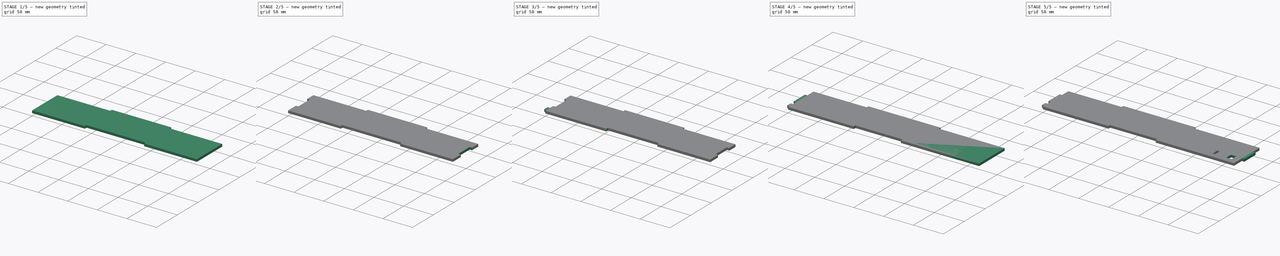
[diagram: build sequence overview — one tinted view per stage of 5, left to right]
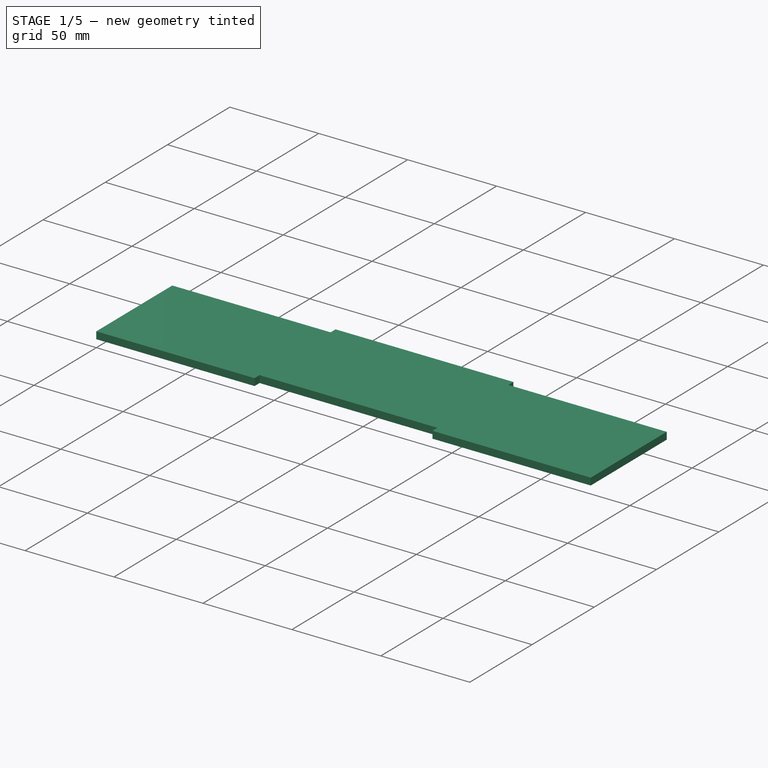
[diagram: stage 1 of 5 — iso view after this stage's code; geometry added in this stage tinted green]
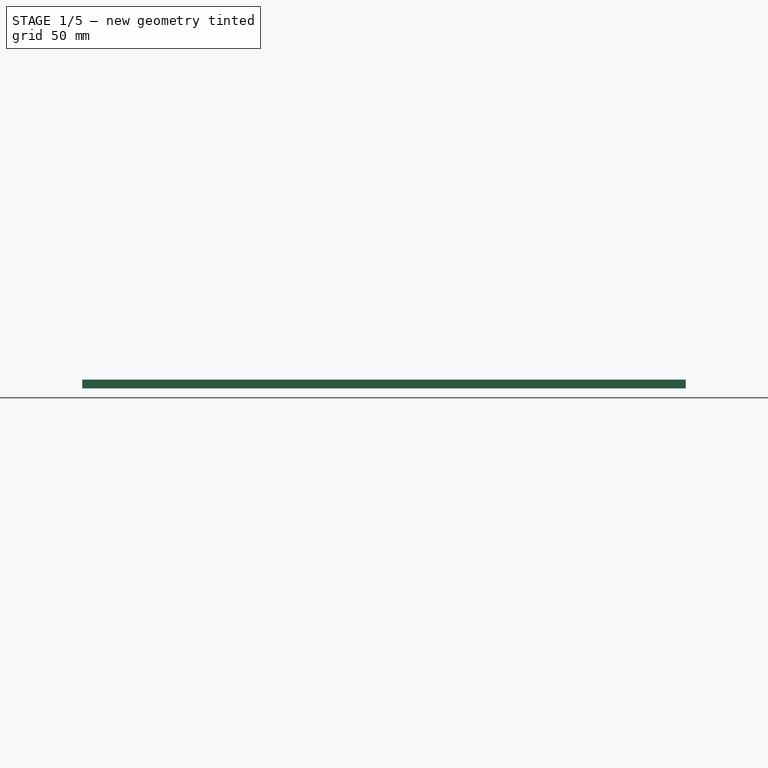
[diagram: stage 1 of 5 — front view after this stage's code; geometry added in this stage tinted green]
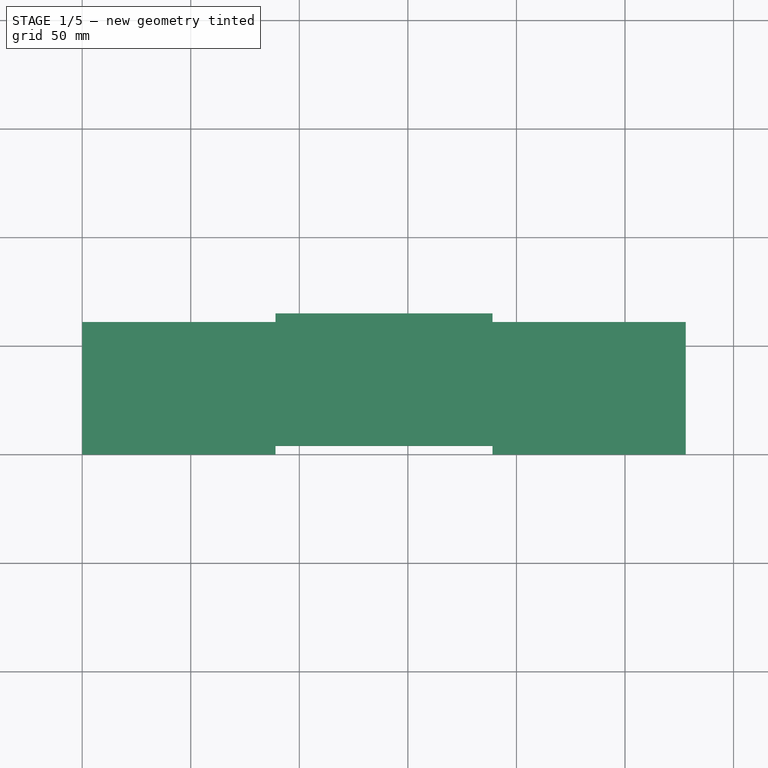
[diagram: stage 1 of 5 — top view after this stage's code; geometry added in this stage tinted green]
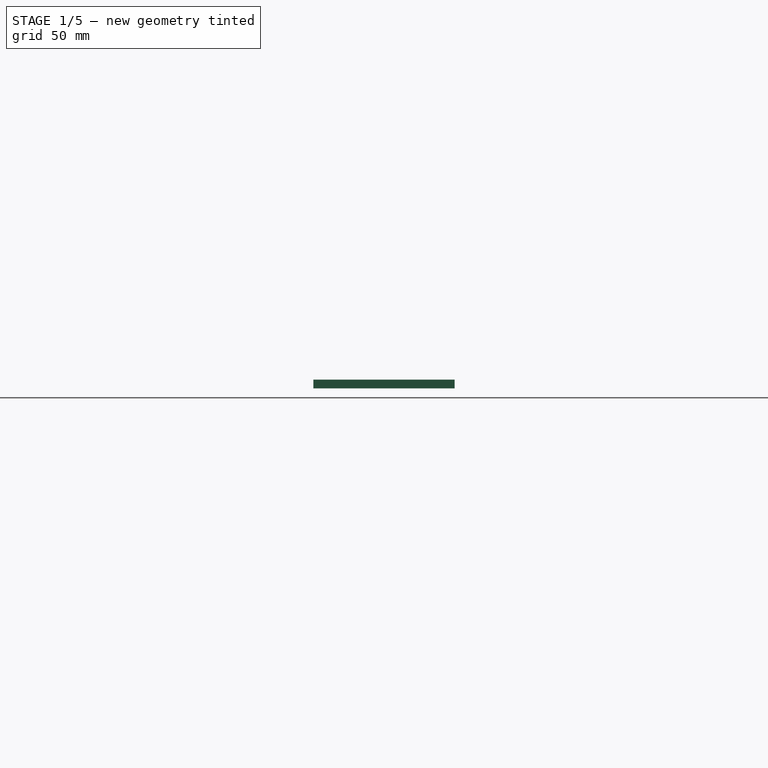
[diagram: stage 1 of 5 — right view after this stage's code; geometry added in this stage tinted green]
FCSTD DOCUMENT  (FreeCAD 0.14R3700 (Git))
Label: interFace-4mm(5&8)
License: CC-BY 3.0
LicenseURL: http://creativecommons.org/licenses/by/3.0/
objects: Sketcher::SketchObject×13, PartDesign::Pocket×8, PartDesign::Pad×5, Part::Box×4
note: 43 computed .brp shape members not serialized (recipe doc carries the construction recipe); baked Part::Feature solids carry a one-line shape summary decoded from their .brp

FEATURE [Part::Box] Box  label="Cubo"
  Height = 4
  Length = 278
  Width = 61
FEATURE [Sketcher::SketchObject] Sketch
  Placement = pos=(0,0,0) rot=(1,0,0;1.5708rad)
  Support = -> Box [Face3]
  sketch-geometry (4):
    g0: LineSegment StartX=89 StartY=4 StartZ=0 EndX=189 EndY=4 EndZ=0
    g1: LineSegment StartX=189 StartY=4 StartZ=0 EndX=189 EndY=0 EndZ=0
    g2: LineSegment StartX=189 StartY=0 StartZ=0 EndX=89 EndY=0 EndZ=0
    g3: LineSegment StartX=89 StartY=0 StartZ=0 EndX=89 EndY=4 EndZ=0
  constraints (12):
    c: Coincident(g0,g1)
    c: Coincident(g1,g2)
    c: Coincident(g2,g3)
    c: Coincident(g3,g0)
    c: Horizontal(g0)
    c: Horizontal(g2)
    c: Vertical(g1)
    c: Vertical(g3)
    c: DistanceX(g0) = 100
    c: DistanceY(g3) = 4
    c: DistanceX(g-1,g2) = 89
    c: DistanceY(g-1,g2) = 0
FEATURE [PartDesign::Pocket] Pocket
  Length = 4
  Sketch = -> Sketch
  Type = 0
FEATURE [Sketcher::SketchObject] Sketch001
  Placement = pos=(0,61,0) rot=(0,0.707107,0.707107;3.14159rad)
  Support = -> Pocket [Face4]
  sketch-geometry (4):
    g0: LineSegment StartX=-189 StartY=4 StartZ=0 EndX=-89 EndY=4 EndZ=0
    g1: LineSegment StartX=-89 StartY=4 StartZ=0 EndX=-89 EndY=0 EndZ=0
    g2: LineSegment StartX=-89 StartY=0 StartZ=0 EndX=-189 EndY=0 EndZ=0
    g3: LineSegment StartX=-189 StartY=0 StartZ=0 EndX=-189 EndY=4 EndZ=0
  constraints (12):
    c: Coincident(g0,g1)
    c: Coincident(g1,g2)
    c: Coincident(g2,g3)
    c: Coincident(g3,g0)
    c: Horizontal(g0)
    c: Horizontal(g2)
    c: Vertical(g1)
    c: Vertical(g3)
    c: DistanceX(g0) = 100
    c: DistanceY(g1) = -4
    c: DistanceX(g-1,g1) = -89
    c: DistanceY(g-1,g1) = 0
FEATURE [PartDesign::Pad] Pad
  Length = 4
  Length2 = 100
  Sketch = -> Sketch001
  Type = 0
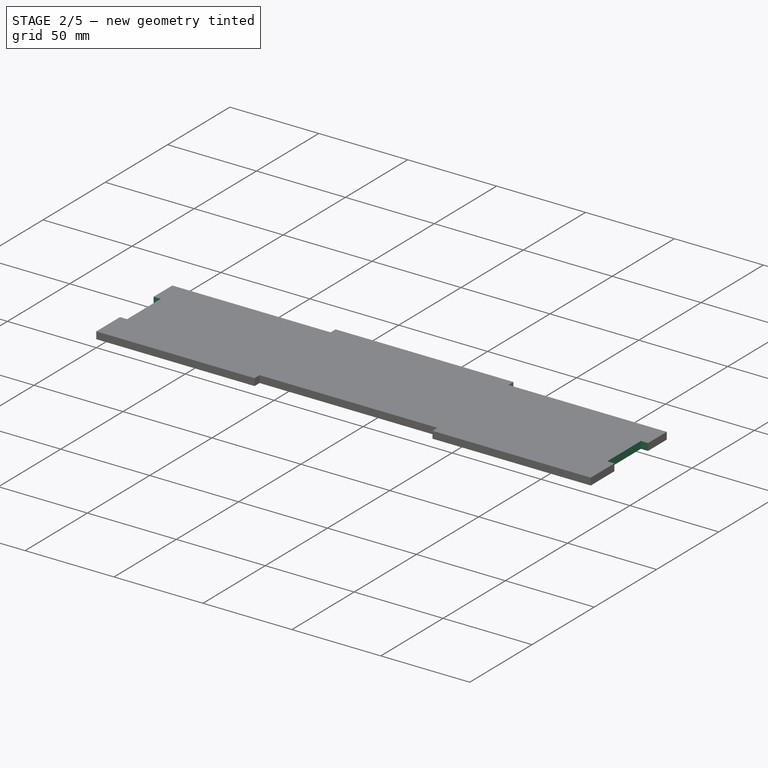
[diagram: stage 2 of 5 — iso view after this stage's code; geometry added in this stage tinted green]
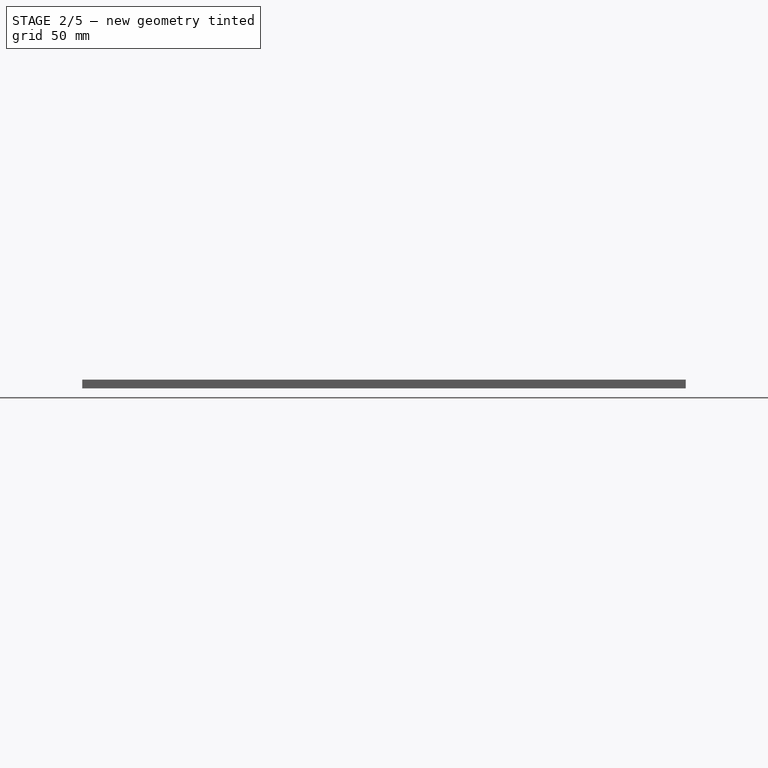
[diagram: stage 2 of 5 — front view after this stage's code; geometry added in this stage tinted green]
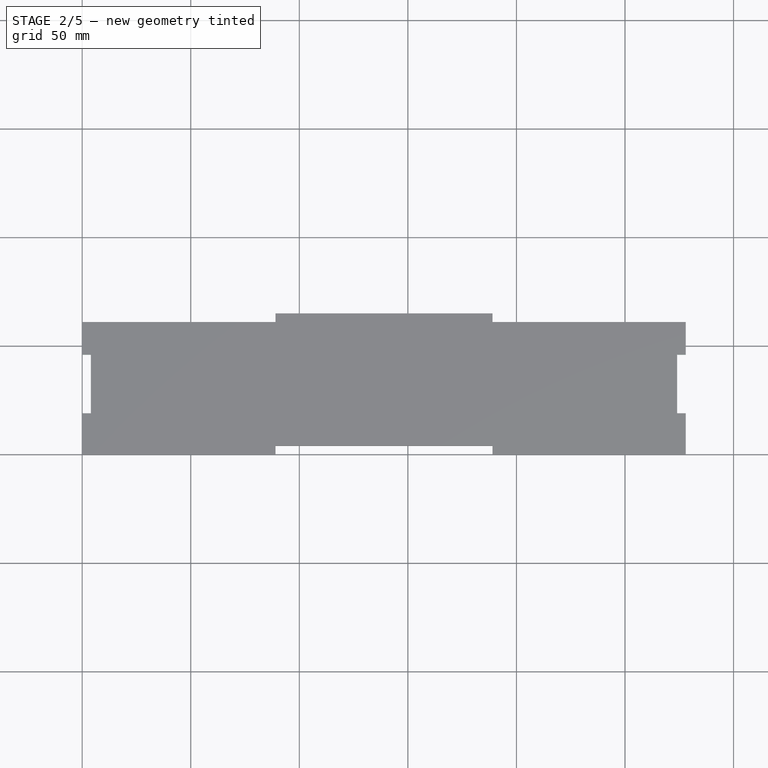
[diagram: stage 2 of 5 — top view after this stage's code; geometry added in this stage tinted green]
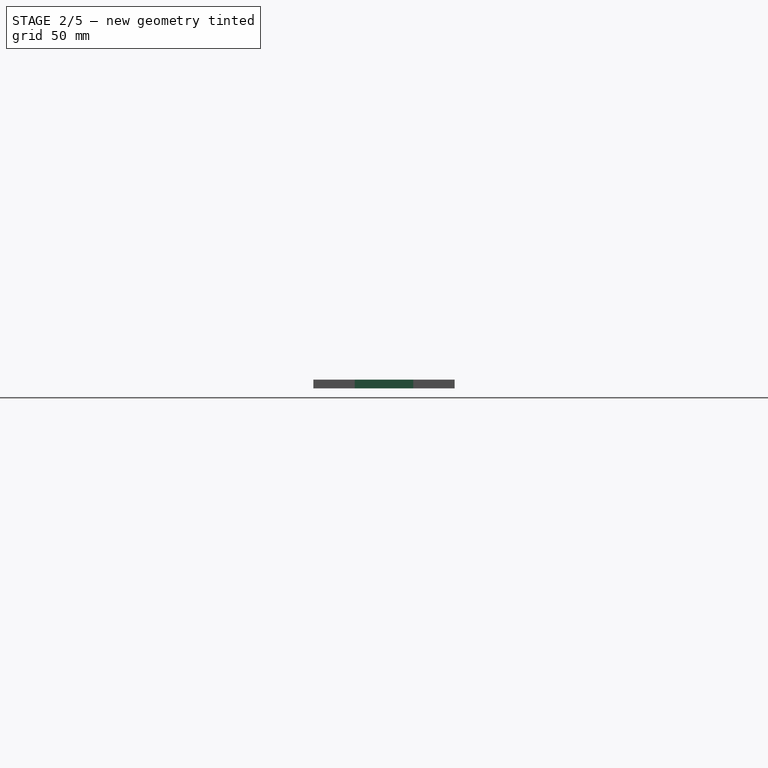
[diagram: stage 2 of 5 — right view after this stage's code; geometry added in this stage tinted green]
FEATURE [Sketcher::SketchObject] Sketch002
  Placement = pos=(278,0,0) rot=(0.57735,0.57735,0.57735;2.0944rad)
  Support = -> Pad [Face2]
  sketch-geometry (4):
    g0: LineSegment StartX=19 StartY=4 StartZ=0 EndX=46 EndY=4 EndZ=0
    g1: LineSegment StartX=46 StartY=4 StartZ=0 EndX=46 EndY=0 EndZ=0
    g2: LineSegment StartX=46 StartY=0 StartZ=0 EndX=19 EndY=0 EndZ=0
    g3: LineSegment StartX=19 StartY=0 StartZ=0 EndX=19 EndY=4 EndZ=0
  constraints (12):
    c: Coincident(g0,g1)
    c: Coincident(g1,g2)
    c: Coincident(g2,g3)
    c: Coincident(g3,g0)
    c: Horizontal(g0)
    c: Horizontal(g2)
    c: Vertical(g1)
    c: Vertical(g3)
    c: DistanceX(g0) = 27
    c: DistanceY(g3) = 4
    c: DistanceX(g-1,g2) = 19
    c: DistanceY(g-1,g2) = 0
FEATURE [PartDesign::Pocket] Pocket001
  Length = 4
  Sketch = -> Sketch002
  Type = 0
FEATURE [Part::Box] Box003  label="Cubo003"
  Height = 4
  Length = 62
  Width = 15
FEATURE [Sketcher::SketchObject] Sketch010
  Placement = pos=(62,0,0) rot=(0.57735,0.57735,0.57735;2.0944rad)
  Support = -> Box003 [Face2]
  sketch-geometry (4):
    g0: LineSegment StartX=3.5 StartY=4 StartZ=0 EndX=11.5 EndY=4 EndZ=0
    g1: LineSegment StartX=11.5 StartY=4 StartZ=0 EndX=11.5 EndY=0 EndZ=0
    g2: LineSegment StartX=11.5 StartY=0 StartZ=0 EndX=3.5 EndY=0 EndZ=0
    g3: LineSegment StartX=3.5 StartY=0 StartZ=0 EndX=3.5 EndY=4 EndZ=0
  constraints (12):
    c: Coincident(g0,g1)
    c: Coincident(g1,g2)
    c: Coincident(g2,g3)
    c: Coincident(g3,g0)
    c: Horizontal(g0)
    c: Horizontal(g2)
    c: Vertical(g1)
    c: Vertical(g3)
    c: DistanceX(g0) = 8
    c: DistanceY(g3) = 4
    c: DistanceX(g-1,g2) = 3.5
    c: DistanceY(g-1,g2) = 0
FEATURE [PartDesign::Pocket] Pocket005
  Length = 4
  Sketch = -> Sketch010
  Type = 0
FEATURE [Sketcher::SketchObject] Sketch012
  Placement = pos=(0,0,0) rot=(0.57735,-0.57735,-0.57735;2.0944rad)
  Support = -> Pocket001 [Face18]
  sketch-geometry (4):
    g0: LineSegment StartX=-46 StartY=4 StartZ=0 EndX=-19 EndY=4 EndZ=0
    g1: LineSegment StartX=-19 StartY=4 StartZ=0 EndX=-19 EndY=0 EndZ=0
    g2: LineSegment StartX=-19 StartY=0 StartZ=0 EndX=-46 EndY=0 EndZ=0
    g3: LineSegment StartX=-46 StartY=0 StartZ=0 EndX=-46 EndY=4 EndZ=0
  constraints (12):
    c: Coincident(g0,g1)
    c: Coincident(g1,g2)
    c: Coincident(g2,g3)
    c: Coincident(g3,g0)
    c: Horizontal(g0)
    c: Horizontal(g2)
    c: Vertical(g1)
    c: Vertical(g3)
    c: DistanceX(g0) = 27
    c: DistanceY(g1) = -4
    c: DistanceX(g-1,g1) = -19
    c: DistanceY(g-1,g1) = 0
FEATURE [PartDesign::Pocket] Pocket007  label="interFace-4mm(8-rojo)"
  Length = 4
  Sketch = -> Sketch012
  Type = 0
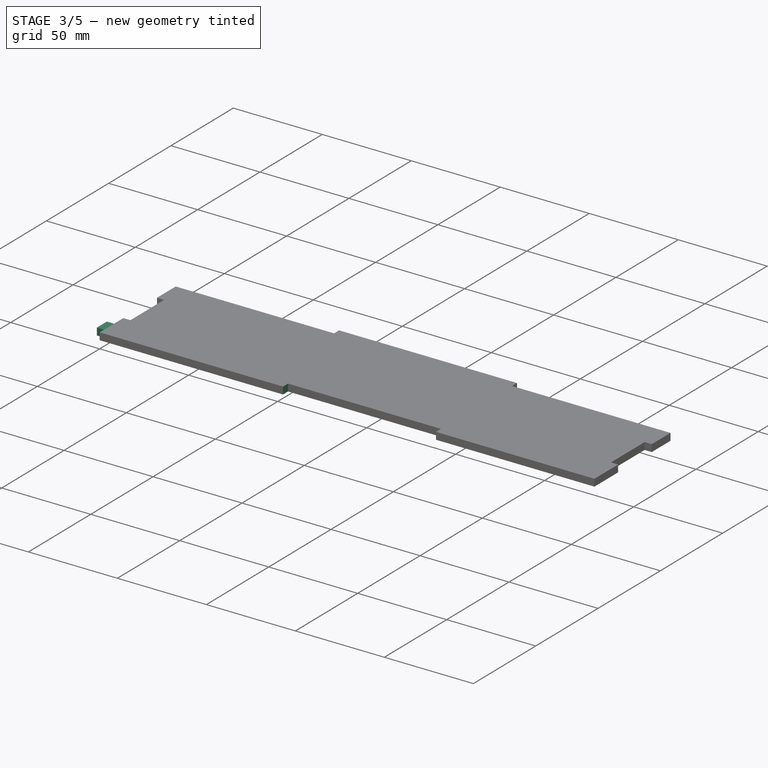
[diagram: stage 3 of 5 — iso view after this stage's code; geometry added in this stage tinted green]
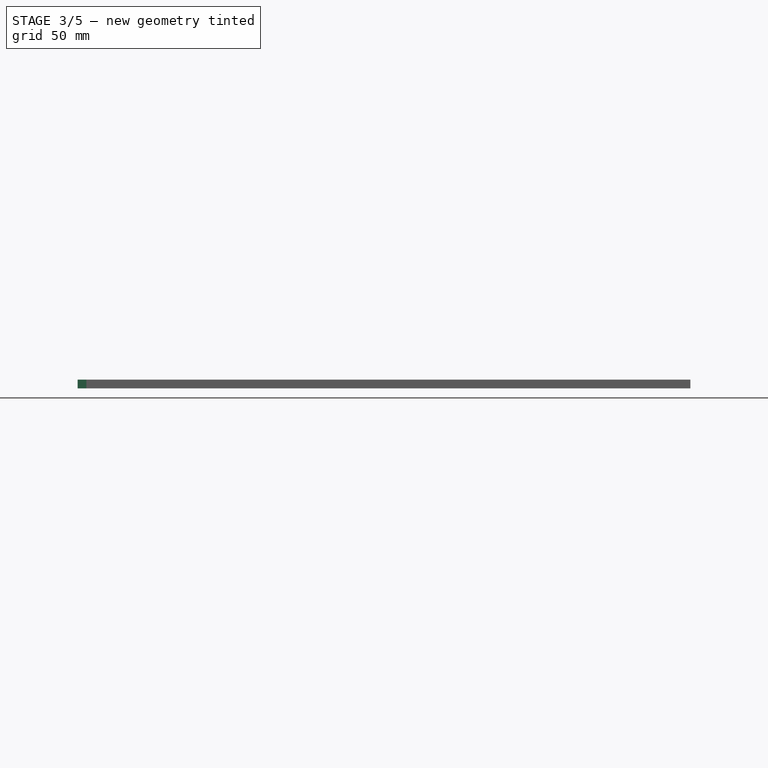
[diagram: stage 3 of 5 — front view after this stage's code; geometry added in this stage tinted green]
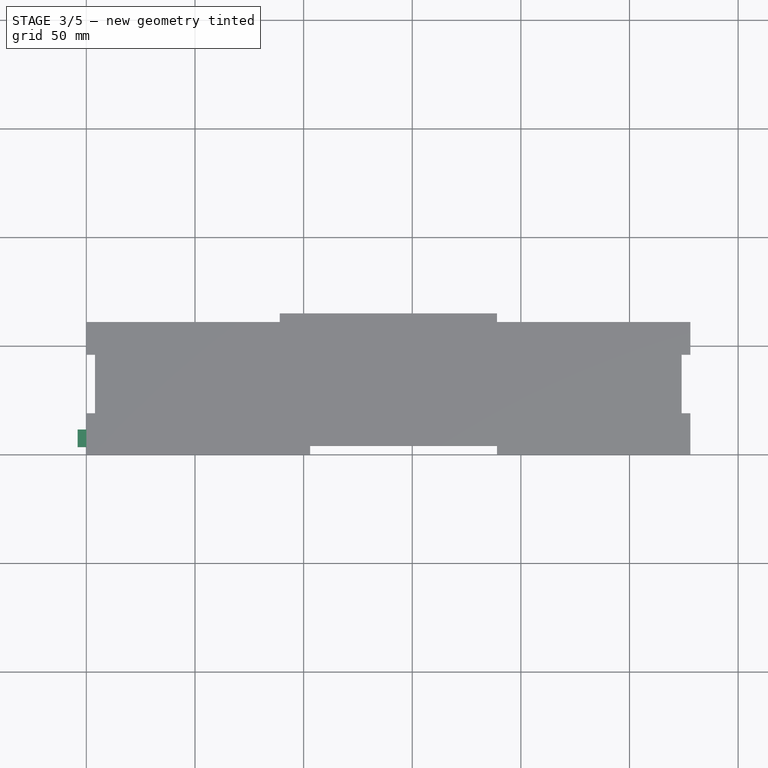
[diagram: stage 3 of 5 — top view after this stage's code; geometry added in this stage tinted green]
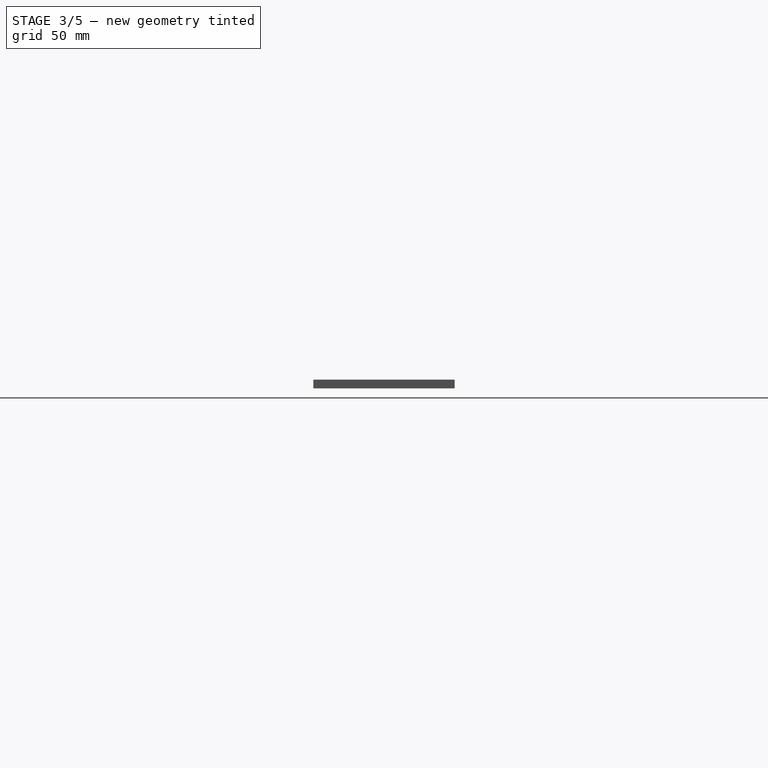
[diagram: stage 3 of 5 — right view after this stage's code; geometry added in this stage tinted green]
FEATURE [Part::Box] Box002  label="Cubo002"
  Height = 4
  Length = 103
  Width = 15
FEATURE [Sketcher::SketchObject] Sketch009
  Placement = pos=(0,0,0) rot=(0.57735,-0.57735,-0.57735;2.0944rad)
  Support = -> Box002 [Face1]
  sketch-geometry (4):
    g0: LineSegment StartX=-3.5 StartY=4 StartZ=0 EndX=-11.5 EndY=4 EndZ=0
    g1: LineSegment StartX=-11.5 StartY=4 StartZ=0 EndX=-11.5 EndY=0 EndZ=0
    g2: LineSegment StartX=-11.5 StartY=0 StartZ=0 EndX=-3.5 EndY=0 EndZ=0
    g3: LineSegment StartX=-3.5 StartY=0 StartZ=0 EndX=-3.5 EndY=4 EndZ=0
  constraints (12):
    c: Coincident(g0,g1)
    c: Coincident(g1,g2)
    c: Coincident(g2,g3)
    c: Coincident(g3,g0)
    c: Horizontal(g0)
    c: Horizontal(g2)
    c: Vertical(g1)
    c: Vertical(g3)
    c: DistanceX(g0) = -8
    c: DistanceX(g-1,g2) = -3.5
    c: DistanceY(g3) = 4
    c: DistanceY(g-1,g2) = 0
FEATURE [PartDesign::Pad] Pad004  label="interFace-4mm(9&11)"
  Length = 4
  Length2 = 100
  Sketch = -> Sketch009
  Type = 0
FEATURE [Sketcher::SketchObject] Sketch011
  Placement = pos=(0,0,0) rot=(0.57735,-0.57735,-0.57735;2.0944rad)
  Support = -> Pocket005 [Face1]
  sketch-geometry (4):
    g0: LineSegment StartX=-3.5 StartY=4 StartZ=0 EndX=-11.5 EndY=4 EndZ=0
    g1: LineSegment StartX=-11.5 StartY=4 StartZ=0 EndX=-11.5 EndY=0 EndZ=0
    g2: LineSegment StartX=-11.5 StartY=0 StartZ=0 EndX=-3.5 EndY=0 EndZ=0
    g3: LineSegment StartX=-3.5 StartY=0 StartZ=0 EndX=-3.5 EndY=4 EndZ=0
  constraints (12):
    c: Coincident(g0,g1)
    c: Coincident(g1,g2)
    c: Coincident(g2,g3)
    c: Coincident(g3,g0)
    c: Horizontal(g0)
    c: Horizontal(g2)
    c: Vertical(g1)
    c: Vertical(g3)
    c: DistanceX(g0) = -8
    c: DistanceY(g1) = -4
    c: DistanceX(g-1,g2) = -3.5
    c: DistanceY(g-1,g2) = 0
FEATURE [PartDesign::Pocket] Pocket006  label="interFace-4mm(10)"
  Length = 4
  Sketch = -> Sketch011
  Type = 0
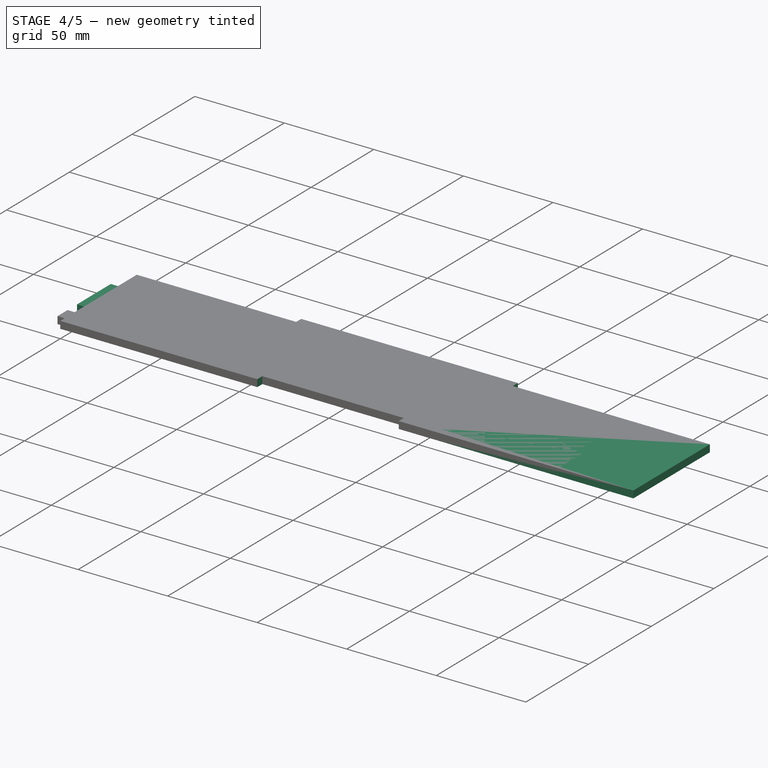
[diagram: stage 4 of 5 — iso view after this stage's code; geometry added in this stage tinted green]
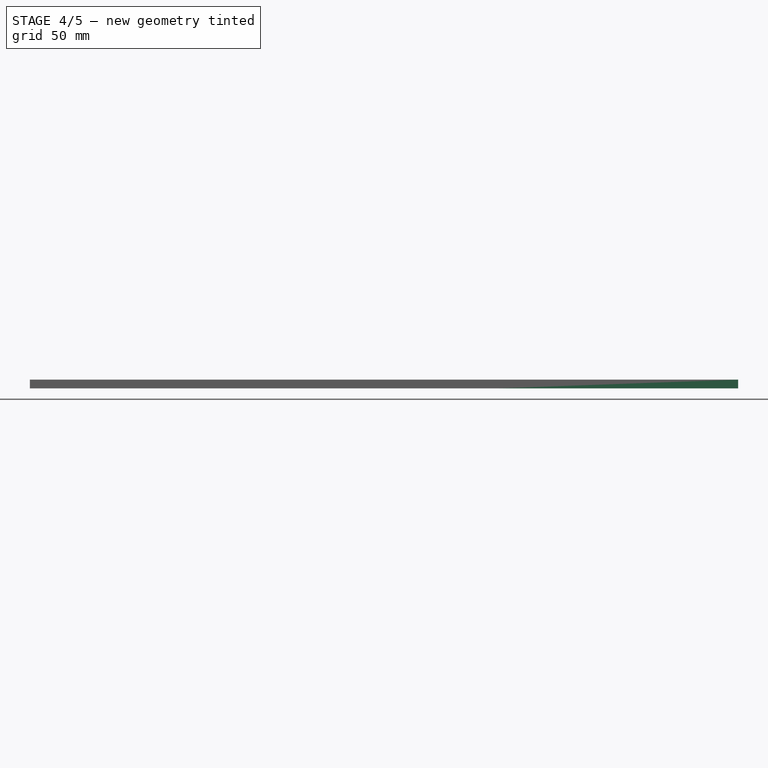
[diagram: stage 4 of 5 — front view after this stage's code; geometry added in this stage tinted green]
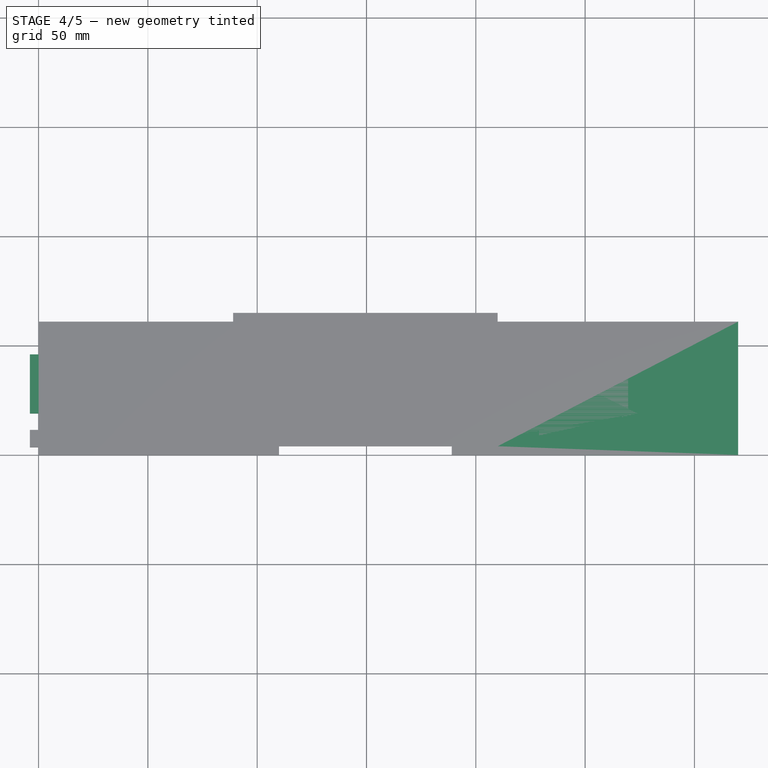
[diagram: stage 4 of 5 — top view after this stage's code; geometry added in this stage tinted green]
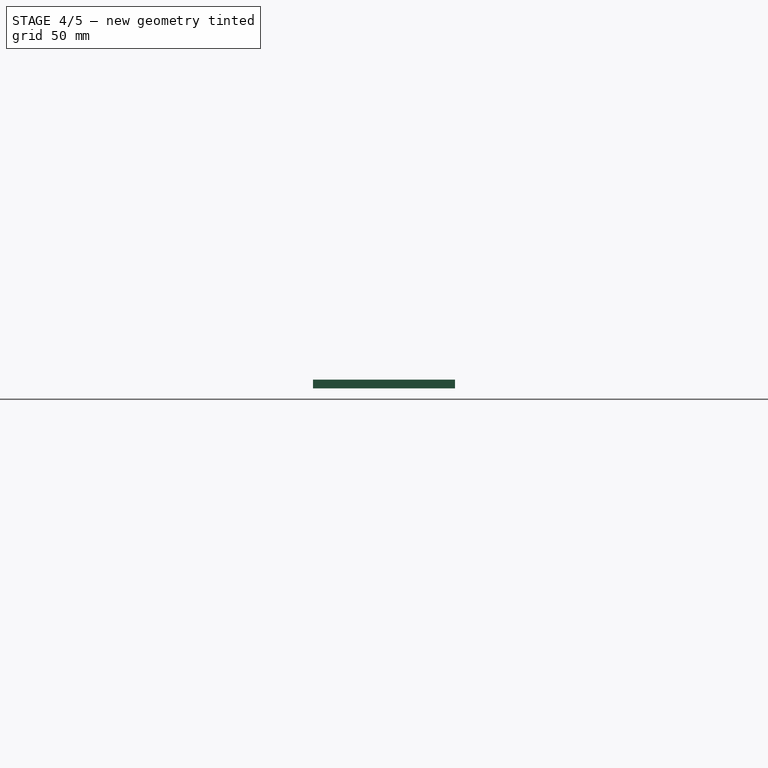
[diagram: stage 4 of 5 — right view after this stage's code; geometry added in this stage tinted green]
FEATURE [Part::Box] Box001  label="Cubo001"
  Height = 4
  Length = 320
  Width = 61
FEATURE [Sketcher::SketchObject] Sketch004
  Placement = pos=(0,0,0) rot=(1,0,0;1.5708rad)
  Support = -> Box001 [Face3]
  sketch-geometry (4):
    g0: LineSegment StartX=110 StartY=4 StartZ=0 EndX=210 EndY=4 EndZ=0
    g1: LineSegment StartX=210 StartY=4 StartZ=0 EndX=210 EndY=0 EndZ=0
    g2: LineSegment StartX=210 StartY=0 StartZ=0 EndX=110 EndY=0 EndZ=0
    g3: LineSegment StartX=110 StartY=0 StartZ=0 EndX=110 EndY=4 EndZ=0
  constraints (12):
    c: Coincident(g0,g1)
    c: Coincident(g1,g2)
    c: Coincident(g2,g3)
    c: Coincident(g3,g0)
    c: Horizontal(g0)
    c: Horizontal(g2)
    c: Vertical(g1)
    c: Vertical(g3)
    c: DistanceX(g0) = 100
    c: DistanceY(g3) = 4
    c: DistanceX(g-1,g2) = 110
    c: DistanceY(g-1,g2) = 0
FEATURE [PartDesign::Pocket] Pocket003
  Length = 4
  Sketch = -> Sketch004
  Type = 0
FEATURE [Sketcher::SketchObject] Sketch005
  Placement = pos=(0,61,0) rot=(0,0.707107,0.707107;3.14159rad)
  Support = -> Pocket003 [Face4]
  sketch-geometry (4):
    g0: LineSegment StartX=-210 StartY=4 StartZ=0 EndX=-110 EndY=4 EndZ=0
    g1: LineSegment StartX=-110 StartY=4 StartZ=0 EndX=-110 EndY=0 EndZ=0
    g2: LineSegment StartX=-110 StartY=0 StartZ=0 EndX=-210 EndY=0 EndZ=0
    g3: LineSegment StartX=-210 StartY=0 StartZ=0 EndX=-210 EndY=4 EndZ=0
  constraints (12):
    c: Coincident(g0,g1)
    c: Coincident(g1,g2)
    c: Coincident(g2,g3)
    c: Coincident(g3,g0)
    c: Horizontal(g0)
    c: Horizontal(g2)
    c: Vertical(g1)
    c: Vertical(g3)
    c: DistanceX(g0) = 100
    c: DistanceX(g-1,g1) = -110
    c: DistanceY(g1) = -4
    c: DistanceY(g-1,g1) = 0
FEATURE [PartDesign::Pad] Pad001
  Length = 4
  Length2 = 100
  Sketch = -> Sketch005
  Type = 0
FEATURE [Sketcher::SketchObject] Sketch006
  Placement = pos=(0,0,0) rot=(0.57735,-0.57735,-0.57735;2.0944rad)
  Support = -> Pad001 [Face5]
  sketch-geometry (4):
    g0: LineSegment StartX=-19 StartY=4 StartZ=0 EndX=-46 EndY=4 EndZ=0
    g1: LineSegment StartX=-46 StartY=4 StartZ=0 EndX=-46 EndY=0 EndZ=0
    g2: LineSegment StartX=-46 StartY=0 StartZ=0 EndX=-19 EndY=0 EndZ=0
    g3: LineSegment StartX=-19 StartY=0 StartZ=0 EndX=-19 EndY=4 EndZ=0
  constraints (12):
    c: Coincident(g0,g1)
    c: Coincident(g1,g2)
    c: Coincident(g2,g3)
    c: Coincident(g3,g0)
    c: Horizontal(g0)
    c: Horizontal(g2)
    c: Vertical(g1)
    c: Vertical(g3)
    c: DistanceX(g0) = -27
    c: DistanceX(g-1,g2) = -19
    c: DistanceY(g3) = 4
    c: DistanceY(g-1,g2) = 0
FEATURE [PartDesign::Pad] Pad002
  Length = 4
  Length2 = 100
  Sketch = -> Sketch006
  Type = 0
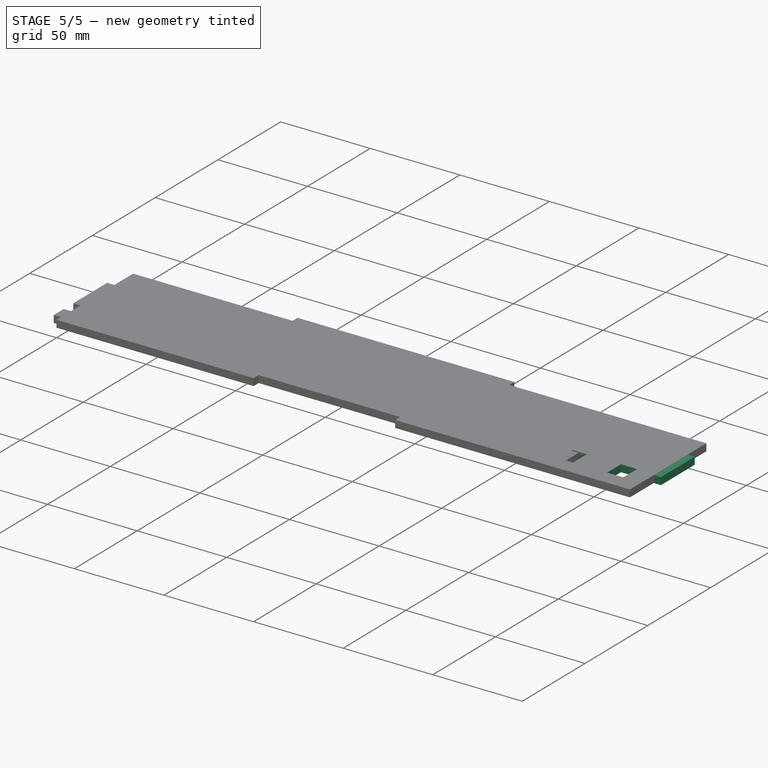
[diagram: stage 5 of 5 — iso view after this stage's code; geometry added in this stage tinted green]
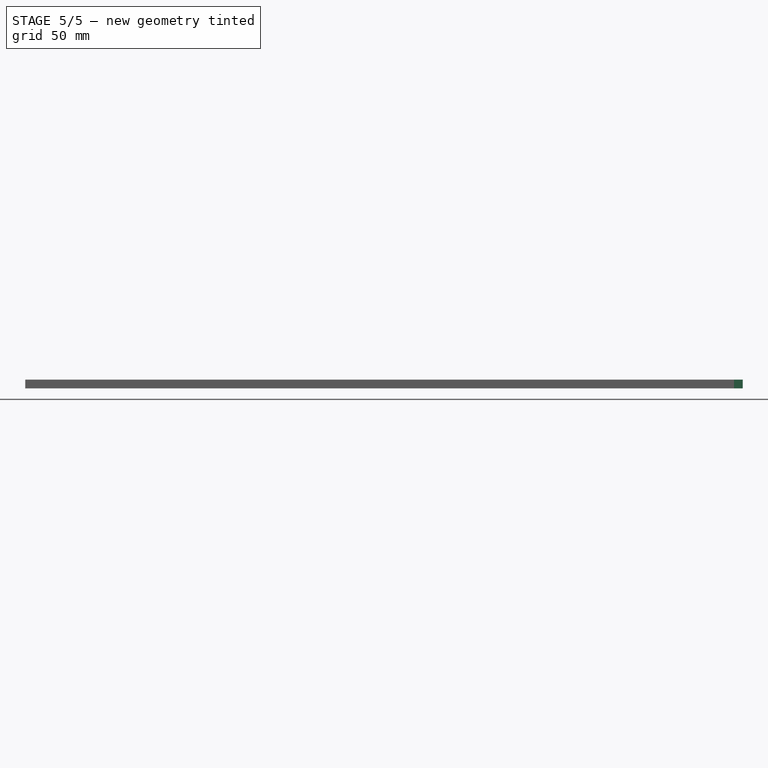
[diagram: stage 5 of 5 — front view after this stage's code; geometry added in this stage tinted green]
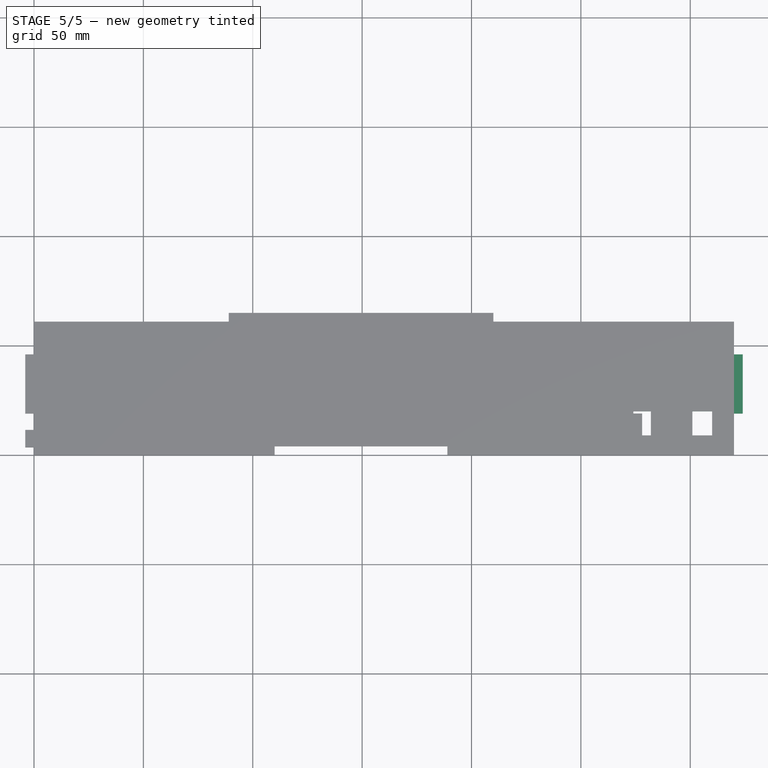
[diagram: stage 5 of 5 — top view after this stage's code; geometry added in this stage tinted green]
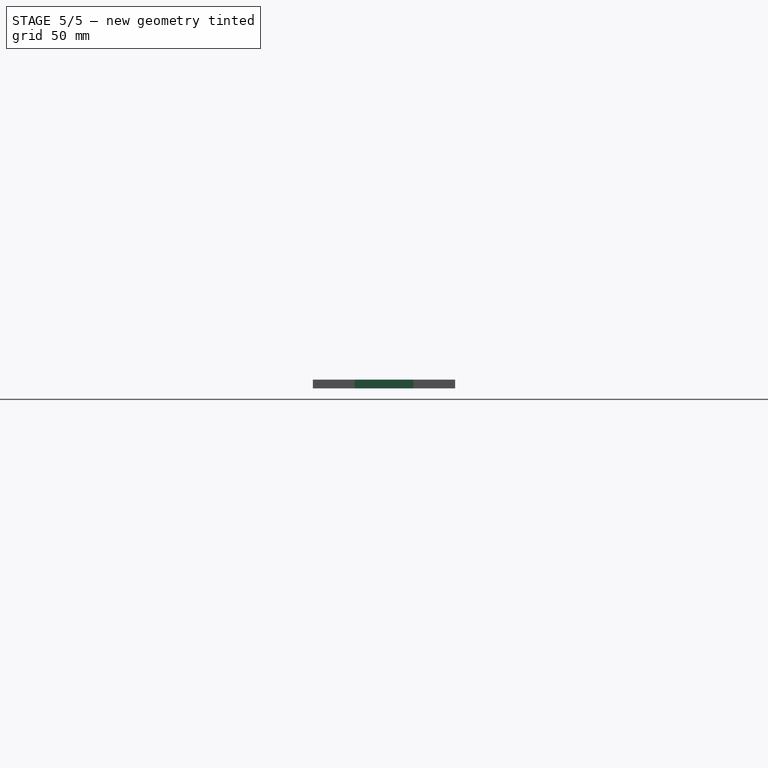
[diagram: stage 5 of 5 — right view after this stage's code; geometry added in this stage tinted green]
FEATURE [Sketcher::SketchObject] Sketch003
  Placement = pos=(0,0,0) rot=(0.57735,-0.57735,-0.57735;2.0944rad)
  Support = -> Pocket001 [Face18]
  sketch-geometry (4):
    g0: LineSegment StartX=-46 StartY=4 StartZ=0 EndX=-19 EndY=4 EndZ=0
    g1: LineSegment StartX=-19 StartY=4 StartZ=0 EndX=-19 EndY=0 EndZ=0
    g2: LineSegment StartX=-19 StartY=0 StartZ=0 EndX=-46 EndY=0 EndZ=0
    g3: LineSegment StartX=-46 StartY=0 StartZ=0 EndX=-46 EndY=4 EndZ=0
  constraints (12):
    c: Coincident(g0,g1)
    c: Coincident(g1,g2)
    c: Coincident(g2,g3)
    c: Coincident(g3,g0)
    c: Horizontal(g0)
    c: Horizontal(g2)
    c: Vertical(g1)
    c: Vertical(g3)
    c: DistanceX(g0) = 27
    c: DistanceY(g1) = -4
    c: DistanceX(g-1,g1) = -19
    c: DistanceY(g-1,g1) = 0
FEATURE [PartDesign::Pocket] Pocket002  label="interFace-4mm(5-amarillo)"
  Length = 4
  Sketch = -> Sketch003
  Type = 0
FEATURE [Sketcher::SketchObject] Sketch007
  Placement = pos=(320,0,0) rot=(0.57735,0.57735,0.57735;2.0944rad)
  Support = -> Pad002 [Face6]
  sketch-geometry (4):
    g0: LineSegment StartX=19 StartY=4 StartZ=0 EndX=46 EndY=4 EndZ=0
    g1: LineSegment StartX=46 StartY=4 StartZ=0 EndX=46 EndY=0 EndZ=0
    g2: LineSegment StartX=46 StartY=0 StartZ=0 EndX=19 EndY=0 EndZ=0
    g3: LineSegment StartX=19 StartY=0 StartZ=0 EndX=19 EndY=4 EndZ=0
  constraints (12):
    c: Coincident(g0,g1)
    c: Coincident(g1,g2)
    c: Coincident(g2,g3)
    c: Coincident(g3,g0)
    c: Horizontal(g0)
    c: Horizontal(g2)
    c: Vertical(g1)
    c: Vertical(g3)
    c: DistanceX(g0) = 27
    c: DistanceY(g3) = 4
    c: DistanceX(g-1,g2) = 19
    c: DistanceY(g-1,g2) = 0
FEATURE [PartDesign::Pad] Pad003  label="interFace-4mm(6)"
  Length = 4
  Length2 = 100
  Sketch = -> Sketch007
  Type = 0
FEATURE [Sketcher::SketchObject] Sketch008
  ExternalGeometry = -> [Pad003]
  Placement = pos=(0,0,4) rot=(0,0,1;0rad)
  Support = -> Pad003 [Face22]
  sketch-geometry (12):
    g0: LineSegment StartX=13 StartY=22 StartZ=0 EndX=34 EndY=22 EndZ=0
    g1: LineSegment StartX=34 StartY=22 StartZ=0 EndX=34 EndY=9 EndZ=0
    g2: LineSegment StartX=34 StartY=9 StartZ=0 EndX=13 EndY=9 EndZ=0
    g3: LineSegment StartX=13 StartY=9 StartZ=0 EndX=13 EndY=22 EndZ=0
    g4: LineSegment StartX=270 StartY=20 StartZ=0 EndX=282 EndY=20 EndZ=0
    g5: LineSegment StartX=282 StartY=20 StartZ=0 EndX=282 EndY=9 EndZ=0
    g6: LineSegment StartX=282 StartY=9 StartZ=0 EndX=270 EndY=9 EndZ=0
    g7: LineSegment StartX=270 StartY=9 StartZ=0 EndX=270 EndY=20 EndZ=0
    g8: LineSegment StartX=301 StartY=20 StartZ=0 EndX=310 EndY=20 EndZ=0
    g9: LineSegment StartX=310 StartY=20 StartZ=0 EndX=310 EndY=9 EndZ=0
    g10: LineSegment StartX=310 StartY=9 StartZ=0 EndX=301 EndY=9 EndZ=0
    g11: LineSegment StartX=301 StartY=9 StartZ=0 EndX=301 EndY=20 EndZ=0
  constraints (36):
    c: Coincident(g0,g1)
    c: Coincident(g1,g2)
    c: Coincident(g2,g3)
    c: Coincident(g3,g0)
    c: Horizontal(g0)
    c: Horizontal(g2)
    c: Vertical(g1)
    c: Vertical(g3)
    c: DistanceX(g0) = 21
    c: DistanceY(g1) = -13
    c: DistanceY(g-1,g2) = 9
    c: DistanceX(g-1,g2) = 13
    c: Coincident(g4,g5)
    c: Coincident(g5,g6)
    c: Coincident(g6,g7)
    c: Coincident(g7,g4)
    c: Horizontal(g4)
    c: Horizontal(g6)
    c: Vertical(g5)
    c: Vertical(g7)
    c: DistanceX(g4) = 12
    c: DistanceY(g7) = 11
    c: DistanceY(g5,g-3) = -9
    c: DistanceX(g5,g-3) = 38
    c: Coincident(g8,g9)
    c: Coincident(g9,g10)
    c: Coincident(g10,g11)
    c: Coincident(g11,g8)
    c: Horizontal(g8)
    c: Horizontal(g10)
    c: Vertical(g9)
    c: Vertical(g11)
    c: DistanceX(g8) = 9
    c: DistanceY(g9) = -11
    c: DistanceY(g9,g-3) = -9
    c: DistanceX(g9,g-3) = 10
FEATURE [PartDesign::Pocket] Pocket004  label="interFace-4mm(7)"
  Length = 5
  Sketch = -> Sketch008
  Type = 0
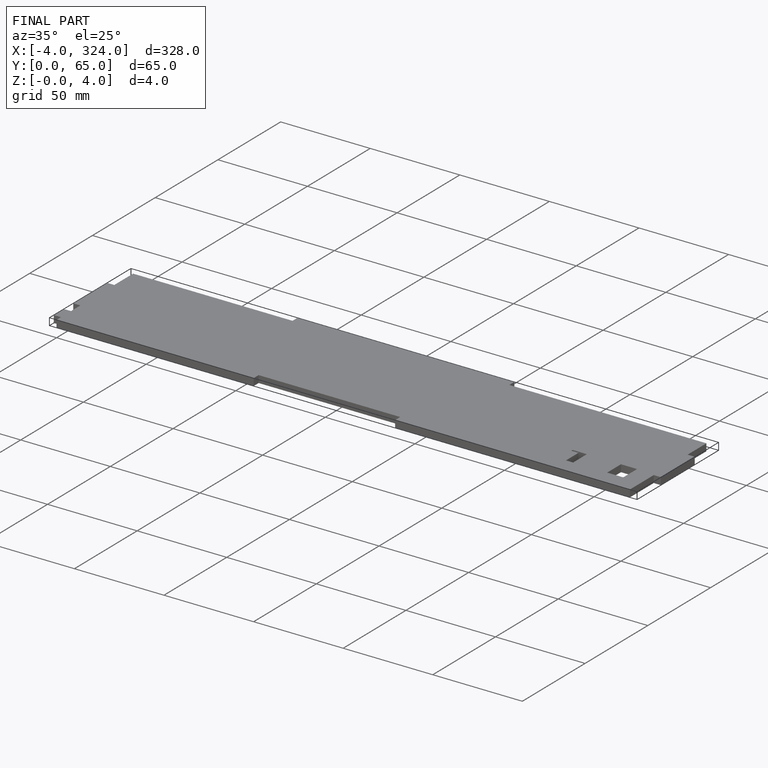
[diagram: finished part — iso view with bounding-box wireframe]
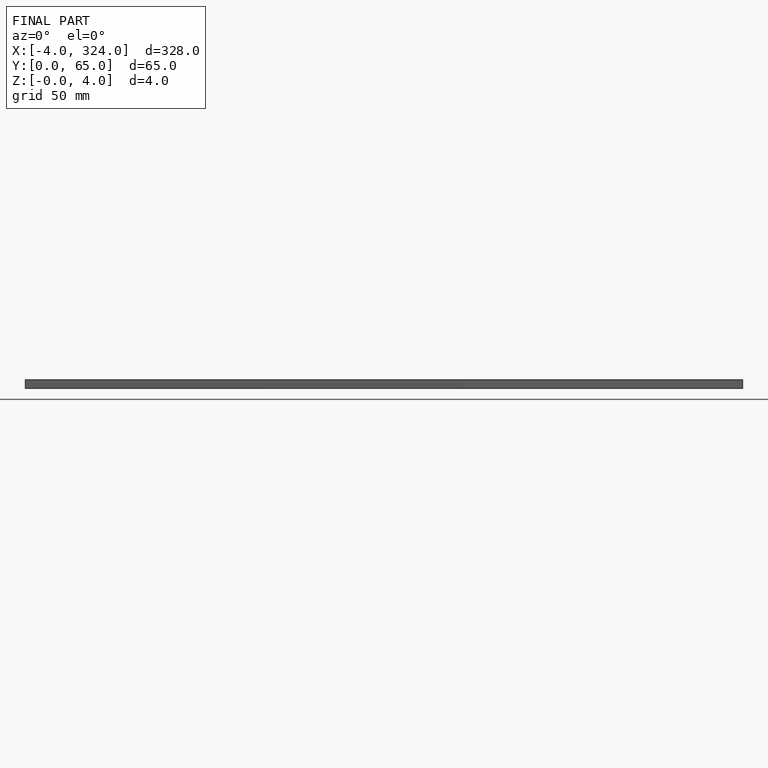
[diagram: finished part — front view with bounding-box wireframe]
